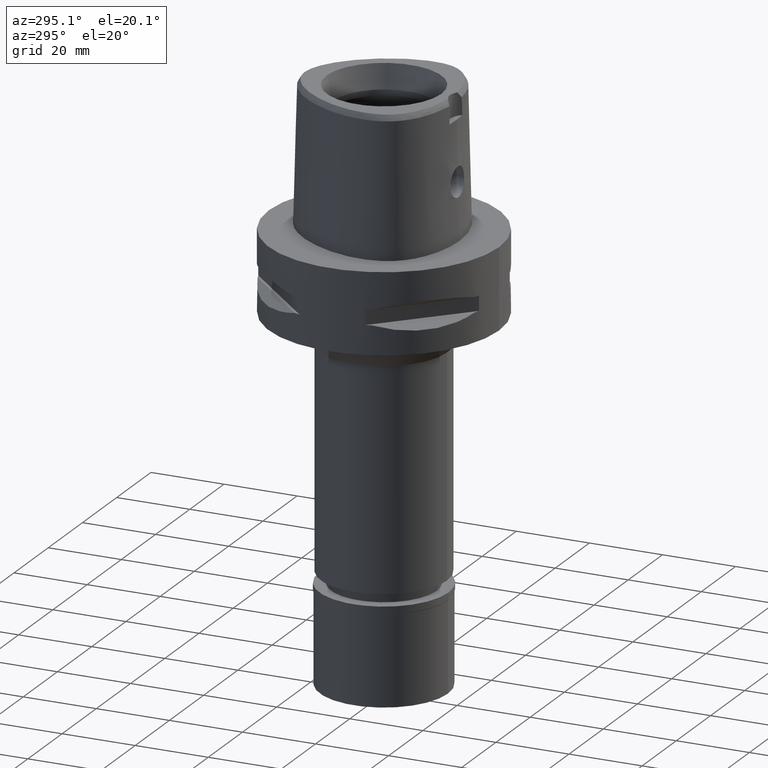
[diagram: clean part render]
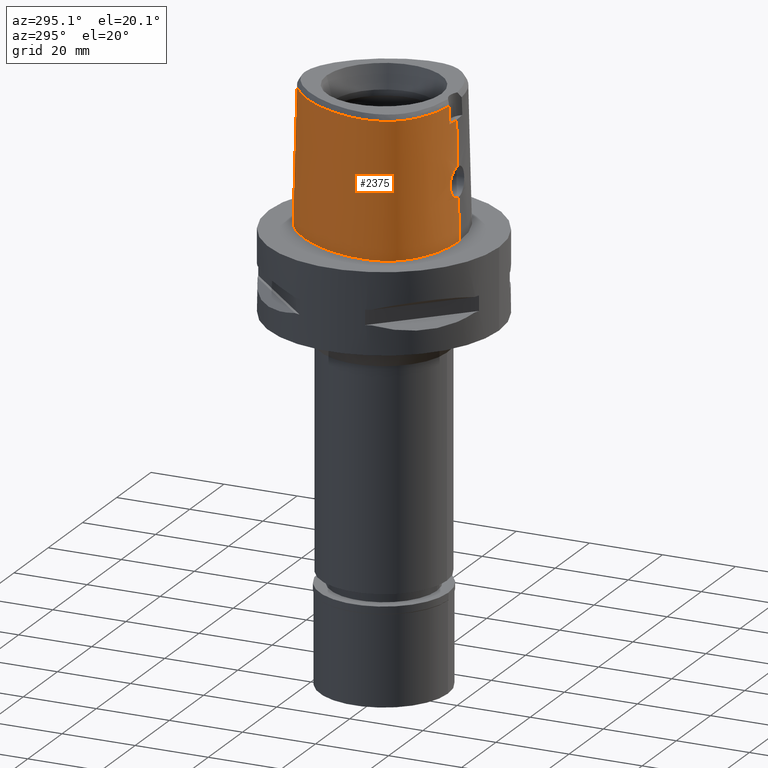
[diagram: same view with one face highlighted and labeled with its STEP entity id]
A machine part, auxiliary view. The second image highlights one B-rep face of the part: STEP entity #2375.
In plain terms, the highlighted face is a freeform B-spline surface patch.
Its self-contained STEP definition (entity closure, byte-faithful):
#6 = CARTESIAN_POINT ( 'NONE',  ( -21.57281238843999915, -9.001246193943000407, -0.7304375056158000090 ) ) ;
#25 = CARTESIAN_POINT ( 'NONE',  ( -3.765489374950850010, -20.12204791086956490, 14.00864527312965535 ) ) ;
#31 = CARTESIAN_POINT ( 'NONE',  ( -14.21104807745999921, -16.40237719823999996, 37.25231278640999477 ) ) ;
#43 = CARTESIAN_POINT ( 'NONE',  ( -3.089131642920631471, -20.21685897408096366, 12.88004451868196654 ) ) ;
#45 = CARTESIAN_POINT ( 'NONE',  ( -8.870440842482999416E-12, -20.67499999999999716, 4.407585407761998945E-14 ) ) ;
#49 = CARTESIAN_POINT ( 'NONE',  ( -14.36818037465000053, -16.67825737433000199, 24.59139602240000144 ) ) ;
#55 = CARTESIAN_POINT ( 'NONE',  ( -22.24453907649206741, -4.100468750011612151, 8.196748358182959215E-08 ) ) ;
#79 = DIRECTION ( 'NONE',  ( 1.828363284145959499E-12, 0.02499051290962944413, -0.9996876883629776112 ) ) ;
#106 = CARTESIAN_POINT ( 'NONE',  ( -14.68244496903000140, -17.23001772651000252, -0.7304375056158000090 ) ) ;
#200 = B_SPLINE_CURVE_WITH_KNOTS ( 'NONE', 3,
 ( #2430, #4741, #1235, #2815, #3977, #3608, #3227, #1188, #2036, #4310, #55, #4764, #2454, #2061, #460, #1292, #2864, #4049, #4101, #2514, #2540, #4407, #2892 ),
 .UNSPECIFIED., .F., .F.,
 ( 4, 1, 1, 1, 1, 1, 1, 1, 1, 1, 1, 1, 1, 1, 1, 1, 1, 1, 1, 1, 4 ),
 ( 0.0000000000000000000, 0.04166666666743999714, 0.08333333333406001131, 0.1250000000006999956, 0.1666666666673000119, 0.2500000000006000200, 0.3333333333337999971, 0.4166666666671000052, 0.5000000000002999823, 0.5416666666668999985, 0.5833333333335000148, 0.6250000000001999512, 0.6458333333333999837, 0.6666666666667999674, 0.6875000000001000311, 0.7083333333333999837, 0.7500000000000000000, 0.7916666666667000474, 0.8333333333332000326, 0.9166666666666000163, 1.000000000000000000 ),
 .UNSPECIFIED. ) ;
#218 = CARTESIAN_POINT ( 'NONE',  ( -17.90324032096775397, -13.53935111954965009, 36.52186244847999319 ) ) ;
#226 = CARTESIAN_POINT ( 'NONE',  ( -2.696415149899703323, -20.10825975497923324, 18.52316981035091814 ) ) ;
#227 = CARTESIAN_POINT ( 'NONE',  ( -2.503154198993086332, -19.81241979316192214, 31.80000012753029992 ) ) ;
#252 = CARTESIAN_POINT ( 'NONE',  ( -2.823299992937055247, -20.10104229143708565, 18.40378355436298818 ) ) ;
#262 = CARTESIAN_POINT ( 'NONE',  ( -4.868968478306999970, 21.95285551763000242, 24.59139602240000144 ) ) ;
#263 = CARTESIAN_POINT ( 'NONE',  ( -19.55745547456097810, -11.29150218116449977, 36.52186244847999319 ) ) ;
#280 = CARTESIAN_POINT ( 'NONE',  ( -3.623054736480679328, -20.05423874947348040, 17.31100359227539442 ) ) ;
#287 = CARTESIAN_POINT ( 'NONE',  ( -2.503210920800999606, 22.99958946615999977, 11.93047925839000101 ) ) ;
#288 = CARTESIAN_POINT ( 'NONE',  ( -20.09619618740927294, -10.23243843868758063, 36.52186244847999319 ) ) ;
#301 = CARTESIAN_POINT ( 'NONE',  ( -2.236225399044929230, -20.13170464962382411, 18.87669531694418268 ) ) ;
#309 = CARTESIAN_POINT ( 'NONE',  ( -7.259695513088000318, 20.78233577566000179, 24.59139602240000144 ) ) ;
#324 = CARTESIAN_POINT ( 'NONE',  ( -1.543048130381288630, -20.15993798682083593, 19.24453660913574637 ) ) ;
#330 = CARTESIAN_POINT ( 'NONE',  ( -17.53318591645999902, 10.12278937847999849, 24.59139602240000144 ) ) ;
#348 = CARTESIAN_POINT ( 'NONE',  ( -2.875757950340810609, -20.24102512592879677, 12.64823125461289166 ) ) ;
#370 = B_SPLINE_CURVE_WITH_KNOTS ( 'NONE', 3,
 ( #3035, #3476, #4941, #619, #2219, #3776, #1440, #5014, #4172, #4560, #641, #324, #698, #2625, #4635, #3450, #3092, #2294, #3426, #4581, #301, #1071, #2244, #4150, #226, #3801, #252, #2649, #4198, #1484, #672, #2273, #1125, #3829, #280, #1878, #4989, #5041, #3062, #1099, #2707, #3873, #2681, #3851, #4250, #1901, #723, #1930, #3505, #1539, #1021, #2606, #852, #801, #2365, #3136, #4682, #373, #25, #3192, #3213, #5061, #2388, #1562, #3897, #1617, #2780, #2802, #3968, #1250, #3986, #1665, #4731, #43, #1174, #2408, #4322, #828, #348, #3921, #3567, #3524, #2729, #4274, #751, #2754, #4298, #1955, #1224, #777, #1592, #3593, #3544, #1204, #3168 ),
 .UNSPECIFIED., .F., .F.,
 ( 4, 2, 2, 1, 1, 1, 2, 2, 2, 2, 1, 2, 2, 2, 1, 1, 1, 2, 2, 2, 2, 2, 1, 1, 2, 2, 2, 2, 1, 2, 2, 2, 2, 1, 1, 1, 2, 2, 2, 2, 1, 2, 2, 2, 1, 1, 1, 2, 2, 2, 2, 2, 1, 1, 2, 2, 4 ),
 ( 0.0000000000000000000, 0.06249999999999616973, 0.09374999999999428235, 0.1093749999999932554, 0.1171874999999927419, 0.1210937499999924782, 0.1230468749999922007, 0.1249999999999919092, 0.1562499999999861222, 0.1718749999999830136, 0.1796874999999816258, 0.1835937499999809042, 0.1874999999999801548, 0.2187499999999773515, 0.2343749999999759637, 0.2421874999999755196, 0.2460937499999750200, 0.2480468749999747147, 0.2499999999999744371, 0.3124999999999650835, 0.3437499999999604205, 0.3593749999999584221, 0.3671874999999570344, 0.3710937499999563127, 0.3730468749999564237, 0.3749999999999565348, 0.4374999999999606426, 0.4687499999999627520, 0.4843749999999637512, 0.4921874999999646949, 0.4999999999999655831, 0.5624999999999747979, 0.5937499999999796829, 0.6093749999999822364, 0.6171874999999834577, 0.6210937499999841238, 0.6230468749999842348, 0.6249999999999843459, 0.6562499999999882316, 0.6718749999999901190, 0.6796874999999911182, 0.6835937499999914513, 0.6874999999999916733, 0.7187499999999936717, 0.7343749999999945599, 0.7421874999999948930, 0.7460937499999951150, 0.7480468749999952260, 0.7499999999999953371, 0.8124999999999950040, 0.8437499999999950040, 0.8593749999999948930, 0.8671874999999947820, 0.8710937499999947820, 0.8730468749999947820, 0.8749999999999947820, 1.000000000000000000 ),
 .UNSPECIFIED. ) ;
#373 = CARTESIAN_POINT ( 'NONE',  ( -3.788010122578853167, -20.11815763408451829, 14.06624340821269747 ) ) ;
#379 = CARTESIAN_POINT ( 'NONE',  ( -16.77374387904000130, -15.44292479317000044, 11.93047925839000101 ) ) ;
#380 = CARTESIAN_POINT ( 'NONE',  ( -1.667908476505000272E-11, 22.56201468012000078, 36.52186680743999858 ) ) ;
#407 = CARTESIAN_POINT ( 'NONE',  ( -19.86834446125000042, 4.339653721899000338, 37.25231278640999477 ) ) ;
#435 = CARTESIAN_POINT ( 'NONE',  ( 0.4560943669547999901, -20.69106768045000067, -0.7304375056158000090 ) ) ;
#455 = CARTESIAN_POINT ( 'NONE',  ( -1.886862292001000085, -20.71358859476999825, -0.7304375056158000090 ) ) ;
#460 = CARTESIAN_POINT ( 'NONE',  ( -20.34961798379519138, -11.74885742084527784, 8.196748358182959215E-08 ) ) ;
#474 = ORIENTED_EDGE ( 'NONE', *, *, #4209, .T. ) ;
#487 = CARTESIAN_POINT ( 'NONE',  ( -21.31039847243999930, -4.105938496203999755, 37.25231278640999477 ) ) ;
#531 = VERTEX_POINT ( 'NONE', #4288 ) ;
#607 = EDGE_CURVE ( 'NONE', #531, #4444, #4445, .T. ) ;
#619 = CARTESIAN_POINT ( 'NONE',  ( -0.8941136475798102667, -20.17742596329176763, 19.45229334933473808 ) ) ;
#641 = CARTESIAN_POINT ( 'NONE',  ( -1.533377486156251690, -20.16026360294686981, 19.24851053760684394 ) ) ;
#654 = CARTESIAN_POINT ( 'NONE',  ( -7.300578999876961461, -19.07170748891781642, 36.52186244847999319 ) ) ;
#655 = CARTESIAN_POINT ( 'NONE',  ( 0.0000000000000000000, -20.18628283968999781, 19.55000000000000071 ) ) ;
#672 = CARTESIAN_POINT ( 'NONE',  ( -3.081149392577403390, -20.08583124627778105, 18.14629112890300888 ) ) ;
#681 = CARTESIAN_POINT ( 'NONE',  ( -19.88562090098304225, 4.345879983791733459, 36.52186244847999319 ) ) ;
#698 = CARTESIAN_POINT ( 'NONE',  ( -1.656252726929899888, -20.15609978928698709, 19.19765142506411948 ) ) ;
#705 = CARTESIAN_POINT ( 'NONE',  ( -7.580410837953000858, 21.33037925914000255, -0.7304375056158000090 ) ) ;
#723 = CARTESIAN_POINT ( 'NONE',  ( -4.038031914720374260, -20.04584209172325160, 15.81781984753358117 ) ) ;
#729 = CARTESIAN_POINT ( 'NONE',  ( -13.69241990753000060, 15.03666401515000040, 37.25231278640999477 ) ) ;
#730 = CARTESIAN_POINT ( 'NONE',  ( -17.27359245832990808, 9.972912913898122511, 36.52186244847999319 ) ) ;
#751 = CARTESIAN_POINT ( 'NONE',  ( -1.812541018710778440, -20.33144879143533856, 11.87771303032907610 ) ) ;
#758 = CARTESIAN_POINT ( 'NONE',  ( -10.75753573533999941, 19.18839675417000024, -0.7304375056158000090 ) ) ;
#777 = CARTESIAN_POINT ( 'NONE',  ( -1.572984596531423307, -20.34569619827913556, 11.76794029727376945 ) ) ;
#784 = CARTESIAN_POINT ( 'NONE',  ( -10.91263714567999976, -18.01320819221999869, 37.25231278640999477 ) ) ;
#801 = CARTESIAN_POINT ( 'NONE',  ( -3.952964639637183364, -20.08622609015915828, 14.60890045227377243 ) ) ;
#806 = CARTESIAN_POINT ( 'NONE',  ( -17.88993667596999870, -13.52675031849000042, 37.25231278640999477 ) ) ;
#828 = CARTESIAN_POINT ( 'NONE',  ( -2.887412005234532231, -20.23974548682601693, 12.66003157092501574 ) ) ;
#835 = CARTESIAN_POINT ( 'NONE',  ( -20.36913785907000118, -10.35391848677999960, 24.59139602240000144 ) ) ;
#852 = CARTESIAN_POINT ( 'NONE',  ( -4.027530768679776330, -20.06783249596159635, 14.99855479655600909 ) ) ;
#859 = CARTESIAN_POINT ( 'NONE',  ( 0.6718639860770000416, -20.05378904595000122, 24.59139602240000144 ) ) ;
#875 = B_SPLINE_SURFACE_WITH_KNOTS ( 'NONE', 3, 3, ( 
 ( #3512, #3904, #4590, #1109 ),
 ( #1083, #5046, #3811, #2659 ),
 ( #1569, #2325, #4690, #3858 ),
 ( #4206, #287, #3458, #2713 ),
 ( #1154, #1884, #262, #4231 ),
 ( #705, #5024, #309, #1862 ),
 ( #758, #3486, #2635, #4182 ),
 ( #1523, #4256, #4664, #729 ),
 ( #3433, #3882, #330, #1937 ),
 ( #1544, #3118, #2736, #407 ),
 ( #4017, #3654, #3973, #2860 ),
 ( #1229, #1644, #1210, #487 ),
 ( #2762, #4714, #3993, #2053 ),
 ( #6, #4737, #4783, #3550 ),
 ( #2371, #2787, #835, #2087 ),
 ( #2474, #2425, #3949, #4329 ),
 ( #2008, #3221, #4757, #1287 ),
 ( #4305, #3199, #1600, #806 ),
 ( #3575, #379, #1625, #4403 ),
 ( #106, #1702, #49, #31 ),
 ( #3247, #2809, #3926, #784 ),
 ( #3177, #3627, #1260, #3599 ),
 ( #455, #2395, #4355, #3276 ),
 ( #435, #1981, #2031, #2836 ),
 ( #4381, #1183, #859, #2449 ) ),
 .UNSPECIFIED., .F., .F., .F.,
 ( 4, 1, 1, 1, 1, 1, 1, 1, 1, 1, 1, 1, 1, 1, 1, 1, 1, 1, 1, 1, 1, 1, 4 ),
 ( 4, 4 ),
 ( -0.01173777939048999998, 0.0000000000000000000, 0.04166666666743999714, 0.08333333333406001131, 0.1250000000006999956, 0.1666666666673000119, 0.2500000000006000200, 0.3333333333337999971, 0.4166666666671000052, 0.5000000000002999823, 0.5416666666668999985, 0.5833333333335000148, 0.6250000000001999512, 0.6458333333333999837, 0.6666666666667999674, 0.6875000000001000311, 0.7083333333333999837, 0.7500000000000000000, 0.7916666666667000474, 0.8333333333332000326, 0.9166666666666000163, 1.000000000000000000, 1.008985696609000060 ),
 ( 5.974067698865999404E-09, 0.9999996953224999929 ),
 .UNSPECIFIED. ) ;
#981 = VERTEX_POINT ( 'NONE', #1560 ) ;
#1004 = LINE ( 'NONE', #4569, #2342 ) ;
#1021 = CARTESIAN_POINT ( 'NONE',  ( -4.050018014422888335, -20.05167593067618981, 15.52805627100407015 ) ) ;
#1071 = CARTESIAN_POINT ( 'NONE',  ( -2.360389010911049912, -20.12578017861218171, 18.79373387522194605 ) ) ;
#1083 = CARTESIAN_POINT ( 'NONE',  ( 0.4823619555683999471, 23.48603817779000025, -0.7304375056158000090 ) ) ;
#1099 = CARTESIAN_POINT ( 'NONE',  ( -3.732557508995177908, -20.04859144260194981, 17.07180291399460259 ) ) ;
#1109 = CARTESIAN_POINT ( 'NONE',  ( 0.6658293066727000165, 22.52368298617000164, 37.25231278640999477 ) ) ;
#1125 = CARTESIAN_POINT ( 'NONE',  ( -3.474550157058655664, -20.06258684786187629, 17.58509941785007058 ) ) ;
#1131 = FACE_OUTER_BOUND ( 'NONE', #1454, .T. ) ;
#1154 = CARTESIAN_POINT ( 'NONE',  ( -5.105252914480999493, 22.54305023834000110, -0.7304375056158000090 ) ) ;
#1174 = CARTESIAN_POINT ( 'NONE',  ( -3.024127618929793648, -20.22444760030290567, 12.80466032897618511 ) ) ;
#1183 = CARTESIAN_POINT ( 'NONE',  ( 0.6779535356749000208, -20.37023529573000147, 11.93047925839000101 ) ) ;
#1188 = CARTESIAN_POINT ( 'NONE',  ( -18.06826688348377630, 10.43171874897430662, 8.196748358182959215E-08 ) ) ;
#1192 = ORIENTED_EDGE ( 'NONE', *, *, #607, .F. ) ;
#1204 = CARTESIAN_POINT ( 'NONE',  ( -0.5047993661875587179, -20.38876923348000503, 11.44999999999999929 ) ) ;
#1210 = CARTESIAN_POINT ( 'NONE',  ( -21.62788416863000407, -4.104079497494000250, 24.59139602240000144 ) ) ;
#1224 = CARTESIAN_POINT ( 'NONE',  ( -1.592612062464952016, -20.34460894491118310, 11.77623291199201994 ) ) ;
#1229 = CARTESIAN_POINT ( 'NONE',  ( -22.26285556102000385, -4.100361500073999466, -0.7304375056158000090 ) ) ;
#1235 = CARTESIAN_POINT ( 'NONE',  ( -2.564517726535870956, 23.29328124797950395, 8.196748358182959215E-08 ) ) ;
#1250 = CARTESIAN_POINT ( 'NONE',  ( -3.388781880796850388, -20.17907268769688756, 13.28211842279059596 ) ) ;
#1260 = CARTESIAN_POINT ( 'NONE',  ( -6.232237609899000219, -19.68961193954000066, 24.59139602240000144 ) ) ;
#1287 = CARTESIAN_POINT ( 'NONE',  ( -18.89485296932999958, -12.27684387220999973, 37.25231278640999477 ) ) ;
#1292 = CARTESIAN_POINT ( 'NONE',  ( -19.64947365697591408, -12.82525390504081919, 8.196748358182959215E-08 ) ) ;
#1397 = CARTESIAN_POINT ( 'NONE',  ( -3.637738201363999835, -19.56971413236999879, 36.52186244848000030 ) ) ;
#1416 = B_SPLINE_CURVE_WITH_KNOTS ( 'NONE', 3,
 ( #4942, #2989, #227, #4535 ),
 .UNSPECIFIED., .F., .F.,
 ( 4, 4 ),
 ( 0.0000000000000000000, 1.000000000000000000 ),
 .UNSPECIFIED. ) ;
#1419 = EDGE_CURVE ( 'NONE', #4444, #2467, #370, .T. ) ;
#1440 = CARTESIAN_POINT ( 'NONE',  ( -1.320565687276261890, -20.16697761691574087, 19.32976498245970021 ) ) ;
#1454 = EDGE_LOOP ( 'NONE', ( #5038, #4405, #1192, #474, #4258, #4669, #3910, #4162 ) ) ;
#1471 = CARTESIAN_POINT ( 'NONE',  ( -21.14970188364319981, -6.717195958887502982, 36.52186244847999319 ) ) ;
#1484 = CARTESIAN_POINT ( 'NONE',  ( -2.857836109606429087, -20.09902107152585771, 18.36973246307253049 ) ) ;
#1496 = CARTESIAN_POINT ( 'NONE',  ( -14.22011356155736017, -16.41829364186009954, 36.52186244847999319 ) ) ;
#1523 = CARTESIAN_POINT ( 'NONE',  ( -14.42198651668000053, 15.65278599970000251, -0.7304375056158000090 ) ) ;
#1539 = CARTESIAN_POINT ( 'NONE',  ( -4.049663826248562692, -20.05088590020228168, 15.56119206774791230 ) ) ;
#1544 = CARTESIAN_POINT ( 'NONE',  ( -20.76670354502000038, 4.663413652512000240, -0.7304375056158000090 ) ) ;
#1560 = CARTESIAN_POINT ( 'NONE',  ( -3.736722311398999796, -19.67781602443999844, 31.80000000000000071 ) ) ;
#1562 = CARTESIAN_POINT ( 'NONE',  ( -3.646271025386286446, -20.14180172674243963, 13.73229968810706403 ) ) ;
#1564 = CARTESIAN_POINT ( 'NONE',  ( 2.041042029990999821E-08, -19.88004246002000031, 31.80000004972000127 ) ) ;
#1569 = CARTESIAN_POINT ( 'NONE',  ( -0.6149727124703999737, 23.51889464493000048, -0.7304375056158000090 ) ) ;
#1592 = CARTESIAN_POINT ( 'NONE',  ( -1.559921522257997850, -20.34641501698343191, 11.76246137009469628 ) ) ;
#1600 = CARTESIAN_POINT ( 'NONE',  ( -18.12052913822000022, -13.74516036650000039, 24.59139602240000144 ) ) ;
#1617 = CARTESIAN_POINT ( 'NONE',  ( -3.520475118946973847, -20.16064927175088073, 13.49656734865700614 ) ) ;
#1619 = CARTESIAN_POINT ( 'NONE',  ( 6.820489934617897263E-09, -19.98212988583403416, 27.71666688228240716 ) ) ;
#1625 = CARTESIAN_POINT ( 'NONE',  ( -16.57726044967000334, -15.19304475863000015, 24.59139602240000144 ) ) ;
#1626 = CARTESIAN_POINT ( 'NONE',  ( -4.757642277158897315, 21.67478330407530862, 36.52186244847999319 ) ) ;
#1644 = CARTESIAN_POINT ( 'NONE',  ( -21.94536986482999907, -4.102220498783999858, 11.93047925839000101 ) ) ;
#1659 = B_SPLINE_CURVE_WITH_KNOTS ( 'NONE', 3,
 ( #1397, #1863, #1885, #3000 ),
 .UNSPECIFIED., .F., .F.,
 ( 4, 4 ),
 ( 0.0000000000000000000, 1.000000000000000000 ),
 .UNSPECIFIED. ) ;
#1665 = CARTESIAN_POINT ( 'NONE',  ( -3.294464282139043299, -20.19175818983875814, 13.14063372506621796 ) ) ;
#1676 = VERTEX_POINT ( 'NONE', #5006 ) ;
#1702 = CARTESIAN_POINT ( 'NONE',  ( -14.52531267184000008, -16.95413755042000403, 11.93047925839000101 ) ) ;
#1862 = CARTESIAN_POINT ( 'NONE',  ( -7.099337850655000004, 20.50831403391000052, 37.25231278640999477 ) ) ;
#1863 = CARTESIAN_POINT ( 'NONE',  ( -3.671249123513567802, -19.60525173594972514, 34.94790829898666829 ) ) ;
#1878 = CARTESIAN_POINT ( 'NONE',  ( -3.649474620159721017, -20.05281468735726591, 17.25706831817002396 ) ) ;
#1884 = CARTESIAN_POINT ( 'NONE',  ( -4.987110696393999731, 22.24795287798000132, 11.93047925839000101 ) ) ;
#1885 = CARTESIAN_POINT ( 'NONE',  ( -3.704239276368590961, -19.64128040965313460, 33.37395414949332917 ) ) ;
#1901 = CARTESIAN_POINT ( 'NONE',  ( -4.019649019913003052, -20.04316019033984730, 16.01163126943011505 ) ) ;
#1930 = CARTESIAN_POINT ( 'NONE',  ( -4.044848056823781235, -20.04744994059091923, 15.72117637690715419 ) ) ;
#1937 = CARTESIAN_POINT ( 'NONE',  ( -17.25769868499000026, 9.963736632745998634, 37.25231278640999477 ) ) ;
#1955 = CARTESIAN_POINT ( 'NONE',  ( -1.638635025836896686, -20.34200884320552305, 11.79610711465293704 ) ) ;
#1981 = CARTESIAN_POINT ( 'NONE',  ( 0.4520368091064000393, -20.37458467736000145, 11.93047925839000101 ) ) ;
#2008 = CARTESIAN_POINT ( 'NONE',  ( -19.66427014273999774, -12.83600704416999960, -0.7304375056158000090 ) ) ;
#2031 = CARTESIAN_POINT ( 'NONE',  ( 0.4479792512580000330, -20.05810167428000312, 24.59139602240000144 ) ) ;
#2036 = CARTESIAN_POINT ( 'NONE',  ( -20.74942740685515474, 4.657187499301531197, 8.196748358182959215E-08 ) ) ;
#2053 = CARTESIAN_POINT ( 'NONE',  ( -21.13154902117000233, -6.714587096942000066, 37.25231278640999477 ) ) ;
#2061 = CARTESIAN_POINT ( 'NONE',  ( -20.93173252023936826, -10.60431640542076082, 8.196748358182959215E-08 ) ) ;
#2087 = CARTESIAN_POINT ( 'NONE',  ( -20.07948516127000360, -10.22500074605999920, 37.25231278640999477 ) ) ;
#2209 = CARTESIAN_POINT ( 'NONE',  ( -10.91891098965358431, -18.03046406390091505, 36.52186244847999319 ) ) ;
#2210 = CARTESIAN_POINT ( 'NONE',  ( 6.840465824590203525E-09, -20.08420636276269633, 23.63333344114112577 ) ) ;
#2219 = CARTESIAN_POINT ( 'NONE',  ( -1.025211814385345921, -20.17465818941732536, 19.42048404905330017 ) ) ;
#2230 = CARTESIAN_POINT ( 'NONE',  ( -3.637738201363999835, -19.56971413236999879, 36.52186244848000030 ) ) ;
#2244 = CARTESIAN_POINT ( 'NONE',  ( -2.467128207655710170, -20.12044499745018911, 18.71456023906525701 ) ) ;
#2255 = CARTESIAN_POINT ( 'NONE',  ( -18.90964971337862011, -12.28759719904343939, 36.52186244847999319 ) ) ;
#2273 = CARTESIAN_POINT ( 'NONE',  ( -3.258446753581197175, -20.07522384658359016, 17.91983021284887201 ) ) ;
#2294 = CARTESIAN_POINT ( 'NONE',  ( -2.141634863663411714, -20.13611892945429105, 18.93776449056395705 ) ) ;
#2301 = CARTESIAN_POINT ( 'NONE',  ( 5.011701677397000322E-11, 23.47499999999000053, 4.122628164774999547E-14 ) ) ;
#2302 = CARTESIAN_POINT ( 'NONE',  ( 0.0000000000000000000, -20.18628283968999781, 19.55000000000000071 ) ) ;
#2325 = CARTESIAN_POINT ( 'NONE',  ( -0.5985508222318999261, 23.20171284942999890, 11.93047925839000101 ) ) ;
#2326 = CARTESIAN_POINT ( 'NONE',  ( -2.376843896516897647, 22.39422508474007856, 36.52186244847999319 ) ) ;
#2328 = VERTEX_POINT ( 'NONE', #2301 ) ;
#2342 = VECTOR ( 'NONE', #3385, 1000.000000000000114 ) ;
#2365 = CARTESIAN_POINT ( 'NONE',  ( -3.921269265875854337, -20.09311890564765335, 14.47775228275580872 ) ) ;
#2371 = CARTESIAN_POINT ( 'NONE',  ( -20.94844325468000079, -10.61175396821999861, -0.7304375056158000090 ) ) ;
#2375 = ADVANCED_FACE ( 'NONE', ( #1131 ), #875, .T. ) ;
#2388 = CARTESIAN_POINT ( 'NONE',  ( -3.698122373792617434, -20.13343971463960358, 13.84482020408003322 ) ) ;
#2395 = CARTESIAN_POINT ( 'NONE',  ( -1.870070495857999893, -20.39691399738000044, 11.93047925839000101 ) ) ;
#2408 = CARTESIAN_POINT ( 'NONE',  ( -2.945118222696918142, -20.23335776654030838, 12.71958560101020552 ) ) ;
#2425 = CARTESIAN_POINT ( 'NONE',  ( -20.09084480772000347, -11.59945465740999992, 11.93047925839000101 ) ) ;
#2426 = CARTESIAN_POINT ( 'NONE',  ( -10.15538788053153674, 18.47129535094191155, 36.52186244847999319 ) ) ;
#2430 = CARTESIAN_POINT ( 'NONE',  ( 5.011701677397000322E-11, 23.47499999999000053, 4.122628164774999547E-14 ) ) ;
#2449 = CARTESIAN_POINT ( 'NONE',  ( 0.6657744364791000624, -19.73734279616000009, 37.25231278640999477 ) ) ;
#2454 = CARTESIAN_POINT ( 'NONE',  ( -21.55524825811899703, -8.996025390039232406, 8.196748358182959215E-08 ) ) ;
#2467 = VERTEX_POINT ( 'NONE', #2608 ) ;
#2474 = CARTESIAN_POINT ( 'NONE',  ( -20.36546124135999847, -11.75800452989999911, -0.7304375056158000090 ) ) ;
#2514 = CARTESIAN_POINT ( 'NONE',  ( -11.23259756656924857, -18.89324218556881618, 8.196748358182959215E-08 ) ) ;
#2540 = CARTESIAN_POINT ( 'NONE',  ( -6.341471018847540719, -20.29812499798098102, 8.196748358182959215E-08 ) ) ;
#2606 = CARTESIAN_POINT ( 'NONE',  ( -4.049848995936176088, -20.05861656952049898, 15.25314035234744559 ) ) ;
#2608 = CARTESIAN_POINT ( 'NONE',  ( -1.106817609798999995E-12, -20.38876923348000147, 11.44999999999999929 ) ) ;
#2625 = CARTESIAN_POINT ( 'NONE',  ( -1.768917262173096416, -20.15190475906379319, 19.14568281053183085 ) ) ;
#2635 = CARTESIAN_POINT ( 'NONE',  ( -10.34823247735000074, 18.70095510955999885, 24.59139602240000144 ) ) ;
#2649 = CARTESIAN_POINT ( 'NONE',  ( -2.841055161952162678, -20.10000556631501567, 18.38634273630945870 ) ) ;
#2659 = CARTESIAN_POINT ( 'NONE',  ( 0.4441907116912000020, 22.53710802647000122, 37.25231278640999477 ) ) ;
#2681 = CARTESIAN_POINT ( 'NONE',  ( -3.848403410397718272, -20.04310851184499853, 16.79149714040717356 ) ) ;
#2707 = CARTESIAN_POINT ( 'NONE',  ( -3.738021026999547747, -20.04832921641929033, 17.05876513949582929 ) ) ;
#2713 = CARTESIAN_POINT ( 'NONE',  ( -2.373090352631999966, 22.37624363923000104, 37.25231278640999477 ) ) ;
#2729 = CARTESIAN_POINT ( 'NONE',  ( -2.086814383339311352, -20.31269213283853503, 12.02647857451320235 ) ) ;
#2736 = CARTESIAN_POINT ( 'NONE',  ( -20.16779748917000248, 4.447573698770000306, 24.59139602240000144 ) ) ;
#2754 = CARTESIAN_POINT ( 'NONE',  ( -1.758544761671193113, -20.33485355119340454, 11.85123508312358709 ) ) ;
#2762 = CARTESIAN_POINT ( 'NONE',  ( -22.07548128678999788, -6.850245534864000341, -0.7304375056158000090 ) ) ;
#2763 = CARTESIAN_POINT ( 'NONE',  ( -7.108589416785409121, 20.52412325828072071, 36.52186244847999319 ) ) ;
#2780 = CARTESIAN_POINT ( 'NONE',  ( -3.466483550186856721, -20.16833646136318947, 13.40542637771265788 ) ) ;
#2787 = CARTESIAN_POINT ( 'NONE',  ( -20.65879055687999966, -10.48283622749999999, 11.93047925839000101 ) ) ;
#2802 = CARTESIAN_POINT ( 'NONE',  ( -3.438474044887640968, -20.17226853620277538, 13.35950353148250080 ) ) ;
#2809 = CARTESIAN_POINT ( 'NONE',  ( -11.13012658258000087, -18.61140123477000330, 11.93047925839000101 ) ) ;
#2815 = CARTESIAN_POINT ( 'NONE',  ( -5.098437016518812648, 22.52602538871645166, 8.196748358182959215E-08 ) ) ;
#2836 = CARTESIAN_POINT ( 'NONE',  ( 0.4439216934095999711, -19.74161867118999680, 37.25231278640999477 ) ) ;
#2848 = EDGE_CURVE ( 'NONE', #2328, #5081, #200, .T. ) ;
#2849 = EDGE_CURVE ( 'NONE', #3121, #2328, #3708, .T. ) ;
#2860 = CARTESIAN_POINT ( 'NONE',  ( -21.05621925531000116, -0.4440251336571999774, 37.25231278640999477 ) ) ;
#2864 = CARTESIAN_POINT ( 'NONE',  ( -18.56841064993348311, -14.16937988140312576, 8.196748358182959215E-08 ) ) ;
#2892 = CARTESIAN_POINT ( 'NONE',  ( -8.870440842482999416E-12, -20.67499999999999716, 4.407585407761998945E-14 ) ) ;
#2989 = CARTESIAN_POINT ( 'NONE',  ( -1.251533273950393710, -19.88005341379872704, 31.80000012753029992 ) ) ;
#3000 = CARTESIAN_POINT ( 'NONE',  ( -3.736722311398999796, -19.67781602443999844, 31.80000000000000071 ) ) ;
#3035 = CARTESIAN_POINT ( 'NONE',  ( 0.0000000000000000000, -20.18628283968999781, 19.55000000000000071 ) ) ;
#3062 = CARTESIAN_POINT ( 'NONE',  ( -3.724287987559096180, -20.04899117660409402, 17.09139312267861754 ) ) ;
#3073 = CARTESIAN_POINT ( 'NONE',  ( -21.32871527669617251, -4.105831244394257951, 36.52186244847999319 ) ) ;
#3092 = CARTESIAN_POINT ( 'NONE',  ( -2.095753548414855061, -20.13818364214428058, 18.96577014705865594 ) ) ;
#3118 = CARTESIAN_POINT ( 'NONE',  ( -20.46725051710000187, 4.555493675640999385, 11.93047925839000101 ) ) ;
#3121 = VERTEX_POINT ( 'NONE', #4482 ) ;
#3136 = CARTESIAN_POINT ( 'NONE',  ( -3.862607746693164312, -20.10460055501437537, 14.28038032243066269 ) ) ;
#3168 = CARTESIAN_POINT ( 'NONE',  ( -1.106817609798999995E-12, -20.38876923348000147, 11.44999999999999929 ) ) ;
#3177 = CARTESIAN_POINT ( 'NONE',  ( -6.344715575923999928, -20.31619964537000200, -0.7304375056158000090 ) ) ;
#3192 = CARTESIAN_POINT ( 'NONE',  ( -3.755562140673627258, -20.12374194796138838, 13.98397501487714223 ) ) ;
#3199 = CARTESIAN_POINT ( 'NONE',  ( -18.35112160046000085, -13.96357041449999947, 11.93047925839000101 ) ) ;
#3213 = CARTESIAN_POINT ( 'NONE',  ( -3.748882549353983684, -20.12487725615871170, 13.96753193210200550 ) ) ;
#3221 = CARTESIAN_POINT ( 'NONE',  ( -19.40779775161000131, -12.64961932017999935, 11.93047925839000101 ) ) ;
#3227 = CARTESIAN_POINT ( 'NONE',  ( -14.40795638800691414, 15.64093749866751004, 8.196748358182959215E-08 ) ) ;
#3247 = CARTESIAN_POINT ( 'NONE',  ( -11.23887130103000054, -18.91049775603999805, -0.7304375056158000090 ) ) ;
#3276 = CARTESIAN_POINT ( 'NONE',  ( -1.836486903574000129, -19.76356480260999859, 37.25231278640999477 ) ) ;
#3385 = DIRECTION ( 'NONE',  ( -6.778339356152798812E-13, -0.02499051295389925070, -0.9996876883618708298 ) ) ;
#3426 = CARTESIAN_POINT ( 'NONE',  ( -2.187955111052519275, -20.13397228737159139, 18.90818030783675852 ) ) ;
#3433 = CARTESIAN_POINT ( 'NONE',  ( -18.08416037938999921, 10.44089486994999838, -0.7304375056158000090 ) ) ;
#3450 = CARTESIAN_POINT ( 'NONE',  ( -2.004675599390210561, -20.14220382833397238, 19.01976680093375194 ) ) ;
#3458 = CARTESIAN_POINT ( 'NONE',  ( -2.438150636716000186, 22.68791655269000174, 24.59139602240000144 ) ) ;
#3476 = CARTESIAN_POINT ( 'NONE',  ( -0.2473412322782370387, -20.18628283968999426, 19.54999999999999005 ) ) ;
#3486 = CARTESIAN_POINT ( 'NONE',  ( -10.55288410634999963, 18.94467593186000087, 11.93047925839000101 ) ) ;
#3505 = CARTESIAN_POINT ( 'NONE',  ( -4.048193638326213595, -20.04945813672255284, 15.62509932612366548 ) ) ;
#3512 = CARTESIAN_POINT ( 'NONE',  ( 0.7234356448520998795, 23.47140592234999801, -0.7304375056158000090 ) ) ;
#3524 = CARTESIAN_POINT ( 'NONE',  ( -2.421503357379951371, -20.28648737493531584, 12.24279215500327567 ) ) ;
#3544 = CARTESIAN_POINT ( 'NONE',  ( -1.035503055404367601, -20.37488775911209160, 11.54570873351844185 ) ) ;
#3550 = CARTESIAN_POINT ( 'NONE',  ( -20.65947771424000123, -8.729764421411999820, 37.25231278640999477 ) ) ;
#3567 = CARTESIAN_POINT ( 'NONE',  ( -2.647727988100973207, -20.26593689667726750, 12.42012271607942608 ) ) ;
#3575 = CARTESIAN_POINT ( 'NONE',  ( -16.97022730840000193, -15.69280482770999896, -0.7304375056158000090 ) ) ;
#3576 = CARTESIAN_POINT ( 'NONE',  ( -13.70645028111027308, 15.04851272300713205, 36.52186244847999319 ) ) ;
#3593 = CARTESIAN_POINT ( 'NONE',  ( -1.554881956804972987, -20.34669101430225524, 11.76035872671679527 ) ) ;
#3599 = CARTESIAN_POINT ( 'NONE',  ( -6.175998626885999876, -19.37631808662999688, 37.25231278640999477 ) ) ;
#3608 = CARTESIAN_POINT ( 'NONE',  ( -10.74572890926563495, 19.17433593592041419, 8.196748358182959215E-08 ) ) ;
#3627 = CARTESIAN_POINT ( 'NONE',  ( -6.288476592910999585, -20.00290579245000089, 11.93047925839000101 ) ) ;
#3654 = CARTESIAN_POINT ( 'NONE',  ( -21.68301109287000017, -0.3332743892105000105, 11.93047925839000101 ) ) ;
#3708 = LINE ( 'NONE', #4763, #4526 ) ;
#3769 = CARTESIAN_POINT ( 'NONE',  ( -16.39211280191641151, -14.95758113319163307, 36.52186244847999319 ) ) ;
#3776 = CARTESIAN_POINT ( 'NONE',  ( -1.222079501498650300, -20.16967619644331933, 19.36182732690444652 ) ) ;
#3801 = CARTESIAN_POINT ( 'NONE',  ( -2.781497320434850984, -20.10345565782016308, 18.44409576488488511 ) ) ;
#3811 = CARTESIAN_POINT ( 'NONE',  ( 0.4569144596502000000, 22.85341807690999971, 24.59139602240000144 ) ) ;
#3829 = CARTESIAN_POINT ( 'NONE',  ( -3.538328569005044333, -20.05892019842456264, 17.47427695038981810 ) ) ;
#3851 = CARTESIAN_POINT ( 'NONE',  ( -3.925407708630975545, -20.04099055260220652, 16.53138977182821634 ) ) ;
#3858 = CARTESIAN_POINT ( 'NONE',  ( -0.5657070417549999730, 22.56734925842999928, 37.25231278640999477 ) ) ;
#3873 = CARTESIAN_POINT ( 'NONE',  ( -3.740129524201757150, -20.04822853724978060, 17.05370687140962005 ) ) ;
#3882 = CARTESIAN_POINT ( 'NONE',  ( -17.80867314793000133, 10.28184212422000066, 11.93047925839000101 ) ) ;
#3897 = CARTESIAN_POINT ( 'NONE',  ( -3.553766164806682948, -20.15576042543186830, 13.55638603583821222 ) ) ;
#3904 = CARTESIAN_POINT ( 'NONE',  ( 0.7042335321256000258, 23.15549827695999952, 11.93047925839000101 ) ) ;
#3910 = ORIENTED_EDGE ( 'NONE', *, *, #2849, .T. ) ;
#3921 = CARTESIAN_POINT ( 'NONE',  ( -2.870809693610187452, -20.24156730632851975, 12.64324605246985911 ) ) ;
#3926 = CARTESIAN_POINT ( 'NONE',  ( -11.02138186413000120, -18.31230471350000144, 24.59139602240000144 ) ) ;
#3949 = CARTESIAN_POINT ( 'NONE',  ( -19.81622837408000137, -11.44090478493000163, 24.59139602240000144 ) ) ;
#3968 = CARTESIAN_POINT ( 'NONE',  ( -3.408875187705914023, -20.17633333109256100, 13.31312751153963170 ) ) ;
#3973 = CARTESIAN_POINT ( 'NONE',  ( -21.36961517409000066, -0.3886497614338000339, 24.59139602240000144 ) ) ;
#3977 = CARTESIAN_POINT ( 'NONE',  ( -7.571159433312931952, 21.31457031072712027, 8.196748358182959215E-08 ) ) ;
#3986 = CARTESIAN_POINT ( 'NONE',  ( -3.377353639916687023, -20.18061854612783890, 13.26476903757044212 ) ) ;
#3993 = CARTESIAN_POINT ( 'NONE',  ( -21.44619310971000203, -6.759806576248998944, 24.59139602240000144 ) ) ;
#4017 = CARTESIAN_POINT ( 'NONE',  ( -21.99640701163999879, -0.2778990169871000115, -0.7304375056158000090 ) ) ;
#4049 = CARTESIAN_POINT ( 'NONE',  ( -16.95889172466486627, -15.67838867025341010, 8.196748358182959215E-08 ) ) ;
#4101 = CARTESIAN_POINT ( 'NONE',  ( -14.67337964317483134, -17.21410156071874553, 8.196748358182959215E-08 ) ) ;
#4150 = CARTESIAN_POINT ( 'NONE',  ( -2.621021505588481570, -20.11233874864636562, 18.58822781674864544 ) ) ;
#4162 = ORIENTED_EDGE ( 'NONE', *, *, #2848, .T. ) ;
#4172 = CARTESIAN_POINT ( 'NONE',  ( -1.492522727690082984, -20.16161937968067974, 19.26502569008682286 ) ) ;
#4182 = CARTESIAN_POINT ( 'NONE',  ( -10.14358084835999918, 18.45723428724999593, 37.25231278640999477 ) ) ;
#4183 = CARTESIAN_POINT ( 'NONE',  ( -4.467522189394354193, -19.48130287050563325, 36.52186244847999319 ) ) ;
#4198 = CARTESIAN_POINT ( 'NONE',  ( -2.852856104025951467, -20.09931387729061925, 18.37467926461776813 ) ) ;
#4206 = CARTESIAN_POINT ( 'NONE',  ( -2.568271204884999825, 23.31126237962000047, -0.7304375056158000090 ) ) ;
#4209 = EDGE_CURVE ( 'NONE', #531, #981, #1416, .T. ) ;
#4231 = CARTESIAN_POINT ( 'NONE',  ( -4.750826260220000208, 21.65775815727000264, 37.25231278640999477 ) ) ;
#4250 = CARTESIAN_POINT ( 'NONE',  ( -4.001055636210808508, -20.04208398455349638, 16.14154222857777299 ) ) ;
#4256 = CARTESIAN_POINT ( 'NONE',  ( -14.17879764697000056, 15.44741200485000121, 11.93047925839000101 ) ) ;
#4258 = ORIENTED_EDGE ( 'NONE', *, *, #4434, .F. ) ;
#4274 = CARTESIAN_POINT ( 'NONE',  ( -1.975954942184613206, -20.32065689222564231, 11.96260358355417530 ) ) ;
#4276 = B_SPLINE_CURVE_WITH_KNOTS ( 'NONE', 3,
 ( #2230, #4183, #654, #2209, #1496, #3769, #218, #2255, #263, #288, #4976, #1471, #3073, #4592, #681, #730, #3576, #2426, #2763, #1626, #2326, #5068, #380 ),
 .UNSPECIFIED., .F., .F.,
 ( 4, 1, 1, 1, 1, 1, 1, 1, 1, 1, 1, 1, 1, 1, 1, 1, 1, 1, 1, 1, 4 ),
 ( 0.0000000000000000000, 0.03580973941715354797, 0.1234633994702160759, 0.1672902294965369629, 0.2111170595230682789, 0.2549438895494943735, 0.2768573045627073514, 0.2987707195759204959, 0.3206841345892386674, 0.3425975496023465627, 0.3864243796288777677, 0.4302512096553038901, 0.4740780396817299569, 0.5617316997345820351, 0.6493853597875395289, 0.7370390198403915516, 0.8246926798933490455, 0.8685195099197751123, 0.9123463399462432566, 0.9561731699726903067, 1.000000000000000000 ),
 .UNSPECIFIED. ) ;
#4288 = CARTESIAN_POINT ( 'NONE',  ( 2.041042029990999821E-08, -19.88004246002000031, 31.80000004972000127 ) ) ;
#4298 = CARTESIAN_POINT ( 'NONE',  ( -1.678454493248096258, -20.33967188086277744, 11.81405957882488522 ) ) ;
#4305 = CARTESIAN_POINT ( 'NONE',  ( -18.58171406270999881, -14.18198046250999944, -0.7304375056158000090 ) ) ;
#4310 = CARTESIAN_POINT ( 'NONE',  ( -21.97832647583584986, -0.2810937503584918784, 8.196748358182959215E-08 ) ) ;
#4322 = CARTESIAN_POINT ( 'NONE',  ( -2.904838724128467664, -20.23782704190360704, 12.67778573503113471 ) ) ;
#4329 = CARTESIAN_POINT ( 'NONE',  ( -19.54161194043999572, -11.28235491244000066, 37.25231278640999477 ) ) ;
#4355 = CARTESIAN_POINT ( 'NONE',  ( -1.853278699715999789, -20.08023939999999996, 24.59139602240000144 ) ) ;
#4381 = CARTESIAN_POINT ( 'NONE',  ( 0.6840430852729000311, -20.68668154552000260, -0.7304375056158000090 ) ) ;
#4403 = CARTESIAN_POINT ( 'NONE',  ( -16.38077702030999916, -14.94316472408999985, 37.25231278640999477 ) ) ;
#4405 = ORIENTED_EDGE ( 'NONE', *, *, #1419, .F. ) ;
#4407 = CARTESIAN_POINT ( 'NONE',  ( -2.113823672942999998, -20.67499999795329657, 8.196748358182959215E-08 ) ) ;
#4434 = EDGE_CURVE ( 'NONE', #1676, #981, #1659, .T. ) ;
#4444 = VERTEX_POINT ( 'NONE', #2302 ) ;
#4445 = B_SPLINE_CURVE_WITH_KNOTS ( 'NONE', 3,
 ( #1564, #1619, #2210, #655 ),
 .UNSPECIFIED., .F., .F.,
 ( 4, 4 ),
 ( 0.0000000000000000000, 1.000000000000000000 ),
 .UNSPECIFIED. ) ;
#4469 = EDGE_CURVE ( 'NONE', #2467, #5081, #1004, .T. ) ;
#4482 = CARTESIAN_POINT ( 'NONE',  ( -1.667908476505000272E-11, 22.56201468012000078, 36.52186680743999858 ) ) ;
#4526 = VECTOR ( 'NONE', #79, 999.9999999999998863 ) ;
#4535 = CARTESIAN_POINT ( 'NONE',  ( -3.736722311398999796, -19.67781602443999844, 31.80000000000000071 ) ) ;
#4560 = CARTESIAN_POINT ( 'NONE',  ( -1.517038990534186338, -20.16080850842840277, 19.25515252244158759 ) ) ;
#4569 = CARTESIAN_POINT ( 'NONE',  ( -1.106817609798999995E-12, -20.38876923348000147, 11.44999999999999929 ) ) ;
#4581 = CARTESIAN_POINT ( 'NONE',  ( -2.218923952810186062, -20.13252298611807234, 18.88809933005988384 ) ) ;
#4590 = CARTESIAN_POINT ( 'NONE',  ( 0.6850314193990999501, 22.83959063156000369, 24.59139602240000144 ) ) ;
#4591 = EDGE_CURVE ( 'NONE', #1676, #3121, #4276, .T. ) ;
#4592 = CARTESIAN_POINT ( 'NONE',  ( -21.07430010672428722, -0.4408303445192948145, 36.52186244847999319 ) ) ;
#4635 = CARTESIAN_POINT ( 'NONE',  ( -1.944872162933183102, -20.14473830020670420, 19.05307826098763258 ) ) ;
#4664 = CARTESIAN_POINT ( 'NONE',  ( -13.93560877724999969, 15.24203800999999991, 24.59139602240000144 ) ) ;
#4669 = ORIENTED_EDGE ( 'NONE', *, *, #4591, .T. ) ;
#4682 = CARTESIAN_POINT ( 'NONE',  ( -3.830499027160743086, -20.11062698623123524, 14.18153512545001149 ) ) ;
#4690 = CARTESIAN_POINT ( 'NONE',  ( -0.5821289319934999096, 22.88453105392999731, 24.59139602240000144 ) ) ;
#4714 = CARTESIAN_POINT ( 'NONE',  ( -21.76083719824999818, -6.805026055556000486, 11.93047925839000101 ) ) ;
#4731 = CARTESIAN_POINT ( 'NONE',  ( -3.215358272887883118, -20.20174660046962600, 13.03391498473813748 ) ) ;
#4737 = CARTESIAN_POINT ( 'NONE',  ( -21.26836749703999985, -8.910752269766000211, 11.93047925839000101 ) ) ;
#4741 = CARTESIAN_POINT ( 'NONE',  ( -0.8548392421571161526, 23.47499999795626735, 8.196748358182959215E-08 ) ) ;
#4757 = CARTESIAN_POINT ( 'NONE',  ( -19.15132536046999689, -12.46323159619999998, 24.59139602240000144 ) ) ;
#4763 = CARTESIAN_POINT ( 'NONE',  ( -1.667908476505000272E-11, 22.56201468012000078, 36.52186680743999858 ) ) ;
#4764 = CARTESIAN_POINT ( 'NONE',  ( -22.05732874118335474, -6.847636718457322580, 8.196748358182959215E-08 ) ) ;
#4783 = CARTESIAN_POINT ( 'NONE',  ( -20.96392260564000054, -8.820258345589000015, 24.59139602240000144 ) ) ;
#4941 = CARTESIAN_POINT ( 'NONE',  ( -0.5036866637249005629, -20.18406862059044116, 19.52728785669985001 ) ) ;
#4942 = CARTESIAN_POINT ( 'NONE',  ( 2.041042029990999821E-08, -19.88004246002000031, 31.80000004972000127 ) ) ;
#4976 = CARTESIAN_POINT ( 'NONE',  ( -20.67704215115632138, -8.734985316448888426, 36.52186244847999319 ) ) ;
#4989 = CARTESIAN_POINT ( 'NONE',  ( -3.686560471764690927, -20.05088322548417423, 17.17709135335520187 ) ) ;
#5006 = CARTESIAN_POINT ( 'NONE',  ( -3.637738201363999835, -19.56971413236999879, 36.52186244848000030 ) ) ;
#5014 = CARTESIAN_POINT ( 'NONE',  ( -1.435263460293921822, -20.16346600381254106, 19.28743623777244665 ) ) ;
#5024 = CARTESIAN_POINT ( 'NONE',  ( -7.420053175520000543, 21.05635751739999861, 11.93047925839000101 ) ) ;
#5038 = ORIENTED_EDGE ( 'NONE', *, *, #4469, .F. ) ;
#5041 = CARTESIAN_POINT ( 'NONE',  ( -3.704467467890588672, -20.04996865237292880, 17.13733399074684272 ) ) ;
#5046 = CARTESIAN_POINT ( 'NONE',  ( 0.4696382076093000291, 23.16972812734999820, 11.93047925839000101 ) ) ;
#5061 = CARTESIAN_POINT ( 'NONE',  ( -3.744859968352565627, -20.12555785049274348, 13.95773689203759638 ) ) ;
#5068 = CARTESIAN_POINT ( 'NONE',  ( -0.7901461696974663163, 22.56201478746771727, 36.52186244847999319 ) ) ;
#5081 = VERTEX_POINT ( 'NONE', #45 ) ;